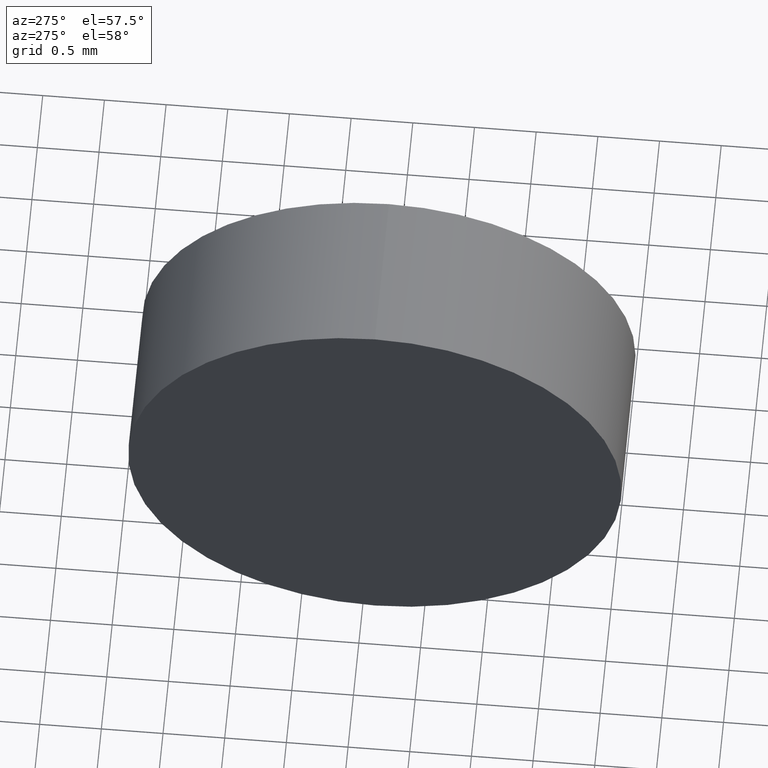
[diagram: clean part render]
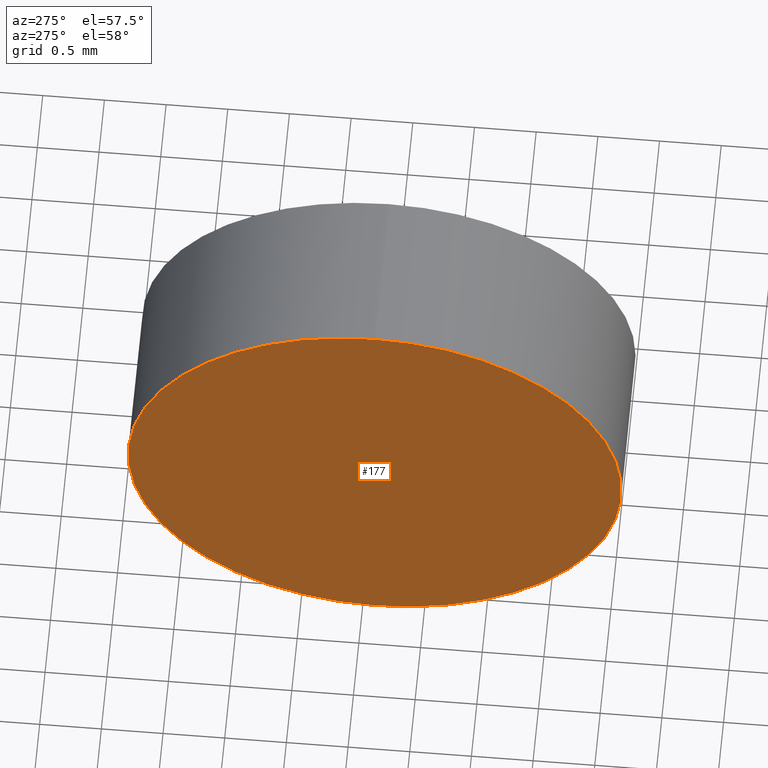
[diagram: same view with one face highlighted and labeled with its STEP entity id]
A machine part, auxiliary view. The second image highlights one B-rep face of the part: STEP entity #177.
In plain terms, the highlighted planar face has unit normal (1, 0, 0).
Its self-contained STEP definition (entity closure, byte-faithful):
#11 = EDGE_LOOP ( 'NONE', ( #82, #141 ) ) ;
#19 = CARTESIAN_POINT ( 'NONE',  ( 638.8131078483555700, -28.10203624254955600, 0.0000000000000000000 ) ) ;
#23 = AXIS2_PLACEMENT_3D ( 'NONE', #54, #98, #71 ) ;
#30 = CIRCLE ( 'NONE', #23, 2.000000000000001800 ) ;
#49 = AXIS2_PLACEMENT_3D ( 'NONE', #55, #84, #67 ) ;
#54 = CARTESIAN_POINT ( 'NONE',  ( 638.8131078483555700, -28.10203624254955600, 0.0000000000000000000 ) ) ;
#55 = CARTESIAN_POINT ( 'NONE',  ( 638.8131078483555700, -28.10203624254955600, 0.0000000000000000000 ) ) ;
#63 = VERTEX_POINT ( 'NONE', #68 ) ;
#67 = DIRECTION ( 'NONE',  ( 0.0000000000000000000, 0.0000000000000000000, -1.000000000000000000 ) ) ;
#68 = CARTESIAN_POINT ( 'NONE',  ( 638.8131078483555700, -28.10203624254955600, 2.000000000000001800 ) ) ;
#71 = DIRECTION ( 'NONE',  ( 0.0000000000000000000, 0.0000000000000000000, 1.000000000000000000 ) ) ;
#77 = EDGE_CURVE ( 'NONE', #63, #140, #134, .T. ) ;
#82 = ORIENTED_EDGE ( 'NONE', *, *, #77, .T. ) ;
#84 = DIRECTION ( 'NONE',  ( 1.000000000000000000, 0.0000000000000000000, 0.0000000000000000000 ) ) ;
#98 = DIRECTION ( 'NONE',  ( -1.000000000000000000, -0.0000000000000000000, -0.0000000000000000000 ) ) ;
#99 = PLANE ( 'NONE',  #49 ) ;
#103 = DIRECTION ( 'NONE',  ( 0.0000000000000000000, 0.0000000000000000000, 1.000000000000000000 ) ) ;
#104 = CARTESIAN_POINT ( 'NONE',  ( 638.8131078483555700, -28.10203624254955600, -2.000000000000001800 ) ) ;
#121 = DIRECTION ( 'NONE',  ( -1.000000000000000000, -0.0000000000000000000, -0.0000000000000000000 ) ) ;
#134 = CIRCLE ( 'NONE', #147, 2.000000000000001800 ) ;
#140 = VERTEX_POINT ( 'NONE', #104 ) ;
#141 = ORIENTED_EDGE ( 'NONE', *, *, #171, .T. ) ;
#147 = AXIS2_PLACEMENT_3D ( 'NONE', #19, #121, #103 ) ;
#171 = EDGE_CURVE ( 'NONE', #140, #63, #30, .T. ) ;
#175 = FACE_OUTER_BOUND ( 'NONE', #11, .T. ) ;
#177 = ADVANCED_FACE ( 'NONE', ( #175 ), #99, .F. ) ;